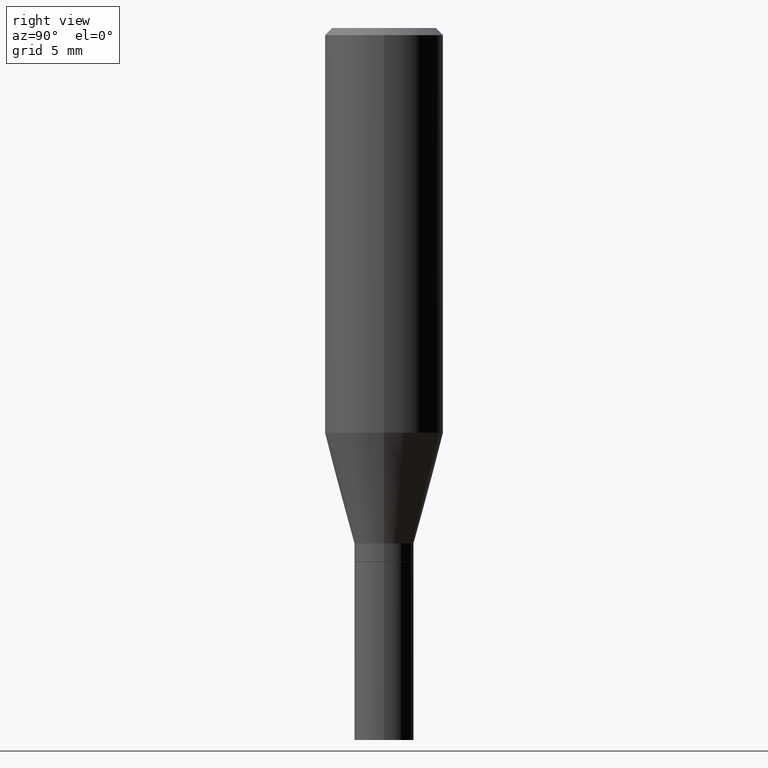
[diagram: clean part render]
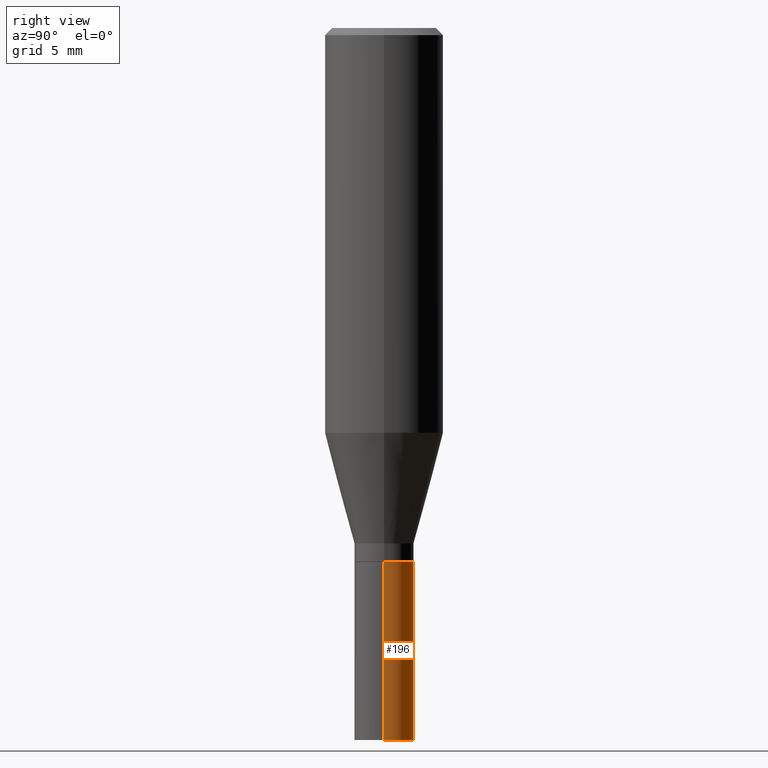
[diagram: same view with one face highlighted and labeled with its STEP entity id]
A machine part, right view. The second image highlights one B-rep face of the part: STEP entity #196.
In plain terms, the highlighted cylindrical surface (edge-blend (fillet) strip) has radius 1.5875 mm, axis along (-0, 0, 1).
Its self-contained STEP definition (entity closure, byte-faithful):
#23 = DIRECTION ( 'NONE',  ( -2.445468806185136597E-29, 3.491481338843145583E-15, 1.000000000000000000 ) ) ;
#26 = CIRCLE ( 'NONE', #167, 0.06250000000000000000 ) ;
#43 = CARTESIAN_POINT ( 'NONE',  ( 2.751152406958279232E-29, -3.927916506198539224E-15, -1.125000000000000222 ) ) ;
#64 = CARTESIAN_POINT ( 'NONE',  ( 0.06250000000000000000, -4.364351673553930894E-15, -1.125000000000000222 ) ) ;
#65 = ORIENTED_EDGE ( 'NONE', *, *, #404, .F. ) ;
#77 = ORIENTED_EDGE ( 'NONE', *, *, #156, .F. ) ;
#92 = CARTESIAN_POINT ( 'NONE',  ( 0.000000000000000000, 0.000000000000000000, 0.000000000000000000 ) ) ;
#100 = CYLINDRICAL_SURFACE ( 'NONE', #462, 0.06250000000000000000 ) ;
#104 = CARTESIAN_POINT ( 'NONE',  ( -0.06250000000000000000, -4.138480047381566479E-15, -1.125000000000000222 ) ) ;
#109 = VERTEX_POINT ( 'NONE', #104 ) ;
#110 = DIRECTION ( 'NONE',  ( -2.445468806185136877E-29, 3.491481338843145188E-15, 1.000000000000000000 ) ) ;
#114 = CARTESIAN_POINT ( 'NONE',  ( 3.668203209277704895E-29, -5.237222008264718177E-15, -1.500000000000000222 ) ) ;
#119 = CARTESIAN_POINT ( 'NONE',  ( 0.06250000000000000000, -4.364351673553916694E-16, 3.047610484872459871E-30 ) ) ;
#131 = VECTOR ( 'NONE', #110, 39.37007874015748143 ) ;
#156 = EDGE_CURVE ( 'NONE', #165, #214, #418, .T. ) ;
#164 = DIRECTION ( 'NONE',  ( 1.000000000000000000, -6.982962677686266711E-15, 4.876176775795935793E-29 ) ) ;
#165 = VERTEX_POINT ( 'NONE', #193 ) ;
#167 = AXIS2_PLACEMENT_3D ( 'NONE', #114, #341, #455 ) ;
#181 = CARTESIAN_POINT ( 'NONE',  ( -0.06250000000000000000, -4.138480047381566479E-15, -1.500000000000000222 ) ) ;
#193 = CARTESIAN_POINT ( 'NONE',  ( 0.06250000000000000000, -5.673657175620109846E-15, -1.500000000000000222 ) ) ;
#196 = ADVANCED_FACE ( 'NONE', ( #388 ), #100, .T. ) ;
#203 = CARTESIAN_POINT ( 'NONE',  ( -0.06250000000000000000, 4.440892098500626162E-16, -3.074334431409316114E-30 ) ) ;
#214 = VERTEX_POINT ( 'NONE', #64 ) ;
#258 = ORIENTED_EDGE ( 'NONE', *, *, #373, .T. ) ;
#271 = DIRECTION ( 'NONE',  ( -2.445468806185136877E-29, 3.491481338843145188E-15, 1.000000000000000000 ) ) ;
#274 = EDGE_LOOP ( 'NONE', ( #461, #258, #65, #77 ) ) ;
#297 = DIRECTION ( 'NONE',  ( -2.445468806185136597E-29, 3.491481338843145583E-15, 1.000000000000000000 ) ) ;
#334 = LINE ( 'NONE', #203, #131 ) ;
#341 = DIRECTION ( 'NONE',  ( -2.445468806185136597E-29, 3.491481338843145583E-15, 1.000000000000000000 ) ) ;
#370 = VERTEX_POINT ( 'NONE', #181 ) ;
#373 = EDGE_CURVE ( 'NONE', #370, #109, #334, .T. ) ;
#384 = AXIS2_PLACEMENT_3D ( 'NONE', #43, #297, #403 ) ;
#388 = FACE_OUTER_BOUND ( 'NONE', #274, .T. ) ;
#403 = DIRECTION ( 'NONE',  ( 1.000000000000000000, -6.982962677686262766E-15, 0.000000000000000000 ) ) ;
#404 = EDGE_CURVE ( 'NONE', #214, #109, #440, .T. ) ;
#415 = VECTOR ( 'NONE', #271, 39.37007874015748143 ) ;
#418 = LINE ( 'NONE', #119, #415 ) ;
#435 = EDGE_CURVE ( 'NONE', #165, #370, #26, .T. ) ;
#440 = CIRCLE ( 'NONE', #384, 0.06250000000000000000 ) ;
#455 = DIRECTION ( 'NONE',  ( 1.000000000000000000, -6.982962677686262766E-15, 0.000000000000000000 ) ) ;
#461 = ORIENTED_EDGE ( 'NONE', *, *, #435, .T. ) ;
#462 = AXIS2_PLACEMENT_3D ( 'NONE', #92, #23, #164 ) ;